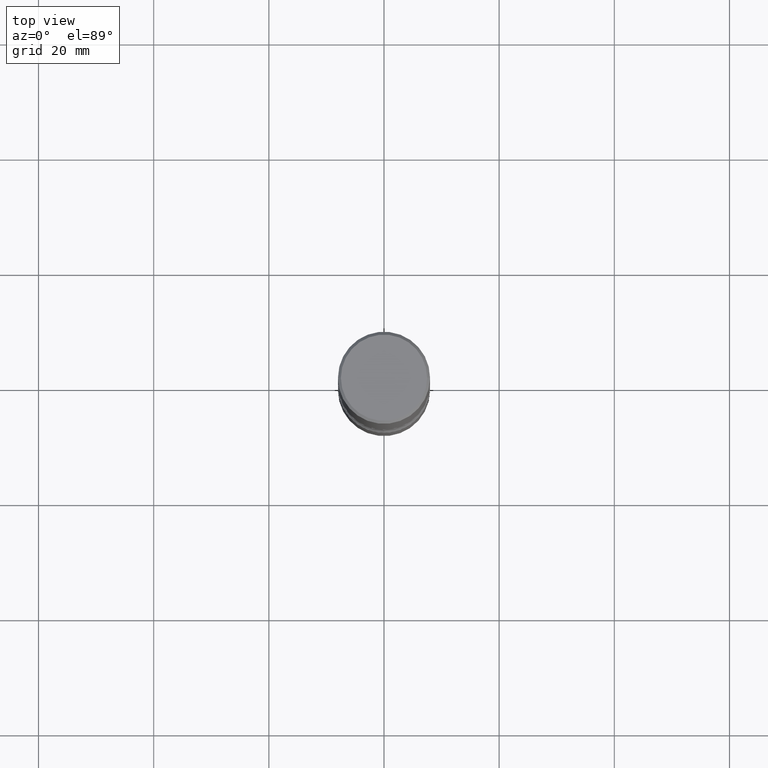
[diagram: clean part render]
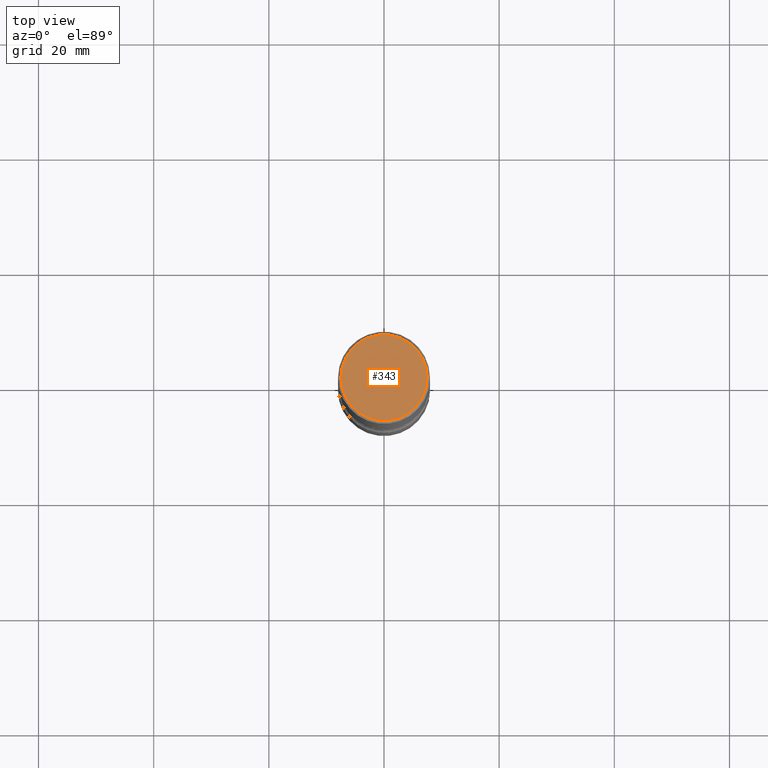
[diagram: same view with one face highlighted and labeled with its STEP entity id]
A machine part, top view. The second image highlights one B-rep face of the part: STEP entity #343.
In plain terms, the highlighted planar face has unit normal (0, -0, -1).
Its self-contained STEP definition (entity closure, byte-faithful):
#14 = AXIS2_PLACEMENT_3D ( 'NONE', #94, #469, #91 ) ;
#29 = EDGE_CURVE ( 'NONE', #294, #496, #103, .T. ) ;
#91 = DIRECTION ( 'NONE',  ( -1.000000000000000000, 6.982962677686265922E-15, -4.876176775795935793E-29 ) ) ;
#94 = CARTESIAN_POINT ( 'NONE',  ( 2.059624841783563274E-15, 0.2949499999999998789, -1.023409652156634744E-15 ) ) ;
#103 = CIRCLE ( 'NONE', #208, 0.2949499999999998789 ) ;
#115 = ORIENTED_EDGE ( 'NONE', *, *, #156, .T. ) ;
#132 = DIRECTION ( 'NONE',  ( -2.445468806185136597E-29, 3.491481338843145583E-15, 1.000000000000000000 ) ) ;
#153 = DIRECTION ( 'NONE',  ( -2.445468806185136597E-29, 3.491481338843145583E-15, 1.000000000000000000 ) ) ;
#156 = EDGE_CURVE ( 'NONE', #496, #294, #511, .T. ) ;
#208 = AXIS2_PLACEMENT_3D ( 'NONE', #219, #132, #345 ) ;
#212 = FACE_OUTER_BOUND ( 'NONE', #393, .T. ) ;
#219 = CARTESIAN_POINT ( 'NONE',  ( -3.131554243005659264E-46, 4.471029511141341874E-32, 1.280553747030123384E-17 ) ) ;
#236 = CARTESIAN_POINT ( 'NONE',  ( 0.2949499999999998789, -2.127023677808859286E-15, 1.280553747031587399E-17 ) ) ;
#239 = DIRECTION ( 'NONE',  ( 1.000000000000000000, -6.982962677686267499E-15, 4.876053491004736589E-29 ) ) ;
#294 = VERTEX_POINT ( 'NONE', #236 ) ;
#317 = AXIS2_PLACEMENT_3D ( 'NONE', #414, #153, #239 ) ;
#343 = ADVANCED_FACE ( 'NONE', ( #212 ), #391, .F. ) ;
#344 = CARTESIAN_POINT ( 'NONE',  ( -0.2949499999999998789, 2.094539655171994924E-15, 1.280553747028670770E-17 ) ) ;
#345 = DIRECTION ( 'NONE',  ( 1.000000000000000000, -6.982962677686267499E-15, 4.876053491004736589E-29 ) ) ;
#359 = ORIENTED_EDGE ( 'NONE', *, *, #29, .T. ) ;
#391 = PLANE ( 'NONE',  #14 ) ;
#393 = EDGE_LOOP ( 'NONE', ( #115, #359 ) ) ;
#414 = CARTESIAN_POINT ( 'NONE',  ( -3.131554243005659264E-46, 4.471029511141341874E-32, 1.280553747030123384E-17 ) ) ;
#469 = DIRECTION ( 'NONE',  ( 2.438088387897960049E-29, -3.491481338843145188E-15, -1.000000000000000000 ) ) ;
#496 = VERTEX_POINT ( 'NONE', #344 ) ;
#511 = CIRCLE ( 'NONE', #317, 0.2949499999999998789 ) ;